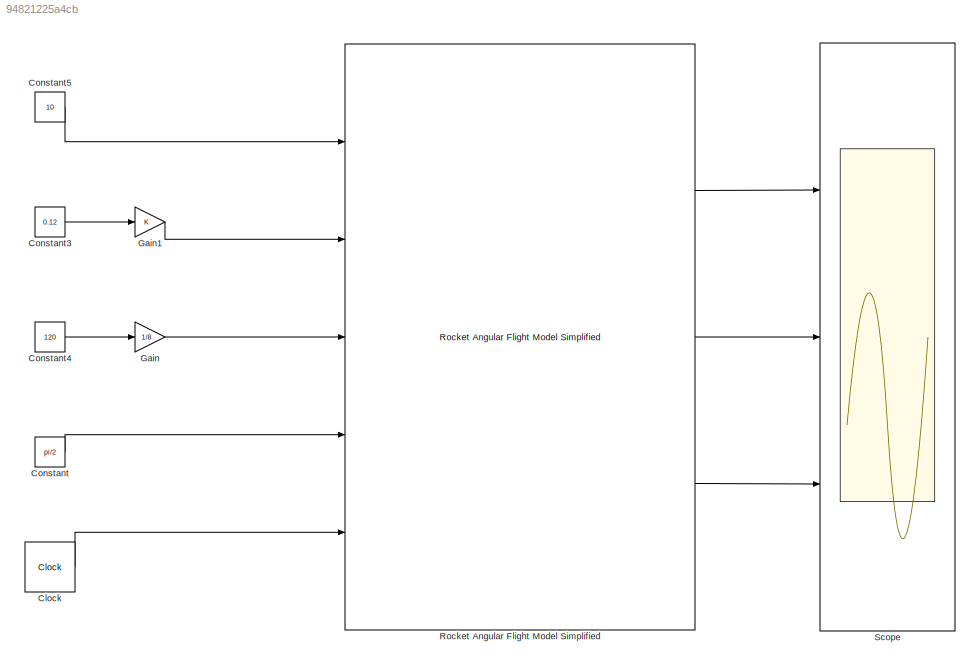
MODEL slx_94821225a4cb
KIND model
BLOCK [Clock] Clock
BLOCK [Constant] Constant
  Value = pi/2
BLOCK [Constant] Constant3
  Value = 0.12
BLOCK [Constant] Constant4
  Value = 120
BLOCK [Constant] Constant5
  Value = 10
BLOCK [Gain] Gain
  Gain = 1/8
  OutDataTypeStr = Inherit: Inherit via internal rule
  ParamDataTypeStr = Inherit: Inherit via internal rule
  SaturateOnIntegerOverflow = off
BLOCK [Gain] Gain1
  OutDataTypeStr = Inherit: Inherit via internal rule
  ParamDataTypeStr = Inherit: Inherit via internal rule
  SaturateOnIntegerOverflow = off
BLOCK [Reference] Rocket Angular Flight Model Simplified  REF=rocket_angular_flight_library/Rocket Angular Flight Model
Simplified
  FunctionWithSeparateData = off
  GeneratePreprocessorConditionals = off
  Ports = [5, 3]
  ShowPortLabels = FromPortIcon
  SourceBlock = rocket_angular_flight_library/Rocket Angular Flight Model\nSimplified
  SystemSampleTime = -1
BLOCK [Scope] Scope
  DataFormat = StructureWithTime
  Floating = off
  NumInputPorts = 3
  Ports = [3]
  SampleTime = 0
  ShowLegends = off
  YMax = 5~5~5
  YMin = -5~-5~-5
LINE Clock:1 -> Rocket Angular Flight Model Simplified:5
LINE Constant3:1 -> Gain1:1
LINE Constant4:1 -> Gain:1
LINE Constant5:1 -> Rocket Angular Flight Model Simplified:1
LINE Constant:1 -> Rocket Angular Flight Model Simplified:4
LINE Gain1:1 -> Rocket Angular Flight Model Simplified:2
LINE Gain:1 -> Rocket Angular Flight Model Simplified:3
LINE Rocket Angular Flight Model Simplified:1 -> Scope:1
LINE Rocket Angular Flight Model Simplified:2 -> Scope:2
LINE Rocket Angular Flight Model Simplified:3 -> Scope:3
